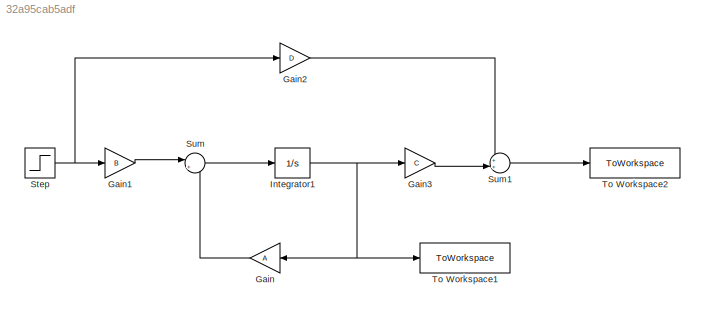
MODEL slx_32a95cab5adf
KIND model
CONFIG AbsTol = auto
CONFIG EnableMultiTasking = off
CONFIG FixedStep = auto
CONFIG MaxStep = 1e-5
CONFIG MinStep = auto
CONFIG RelTol = 1e-3
CONFIG SampleTimeConstraint = Unconstrained
CONFIG SolverName = VariableStepAuto
CONFIG StartTime = 0.0
CONFIG StopTime = tEnd
BLOCK [Gain] Gain
  Gain = A
  Multiplication = Matrix(K*u)
BLOCK [Gain] Gain1
  Gain = B
  Multiplication = Matrix(K*u)
BLOCK [Gain] Gain2
  Gain = D
  Multiplication = Matrix(K*u)
BLOCK [Gain] Gain3
  Gain = C
  Multiplication = Matrix(K*u)
BLOCK [Integrator] Integrator1
BLOCK [Step] Step
  SampleTime = 0
  Time = 0
BLOCK [Sum] Sum
  Inputs = |++
BLOCK [Sum] Sum1
  Inputs = ++|
BLOCK [ToWorkspace] To Workspace1
  FixptAsFi = on
  MaxDataPoints = inf
  SampleTime = -1
  SaveFormat = Timeseries
  VariableName = x
BLOCK [ToWorkspace] To Workspace2
  FixptAsFi = on
  MaxDataPoints = inf
  SampleTime = -1
  SaveFormat = Timeseries
  VariableName = y
LINE Gain1:1 -> Sum:1
LINE Gain2:1 -> Sum1:1
LINE Gain3:1 -> Sum1:2
LINE Gain:1 -> Sum:2
NET Integrator1:1 -> Gain3:1, Gain:1, To Workspace1:1
NET Step:1 -> Gain1:1, Gain2:1
LINE Sum1:1 -> To Workspace2:1
LINE Sum:1 -> Integrator1:1
note: NET lines group one-source signal fan-out (src -> all destinations, sorted); 1:1 wires keep LINE
